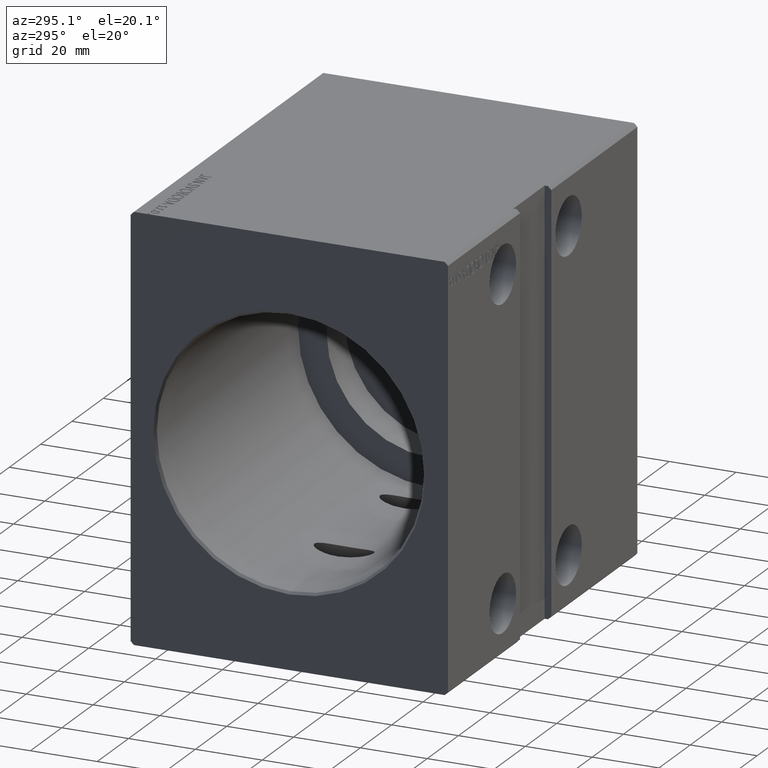
[diagram: clean part render]
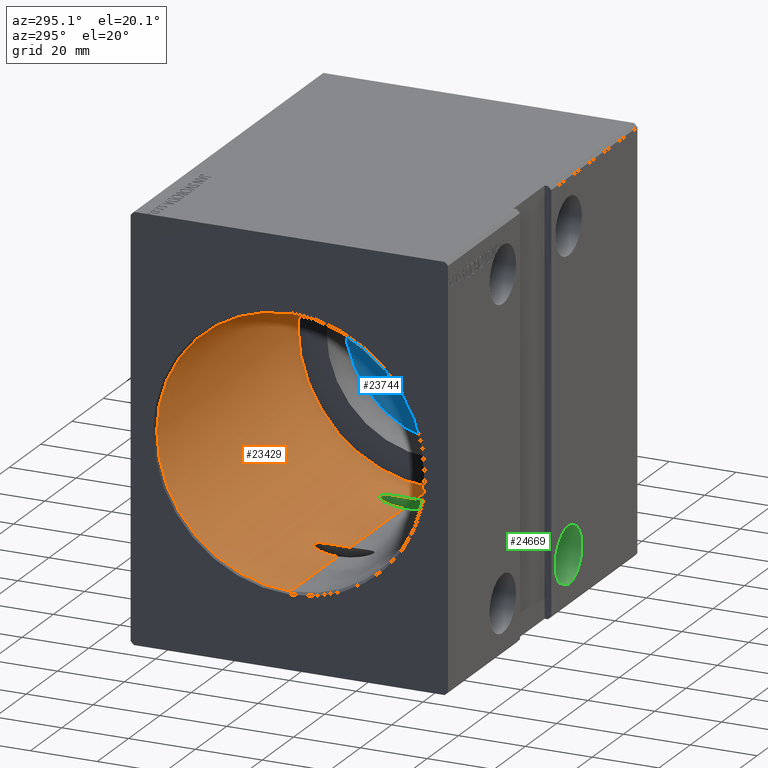
[diagram: same view with three faces highlighted in distinct colors, each labeled with its STEP entity id]
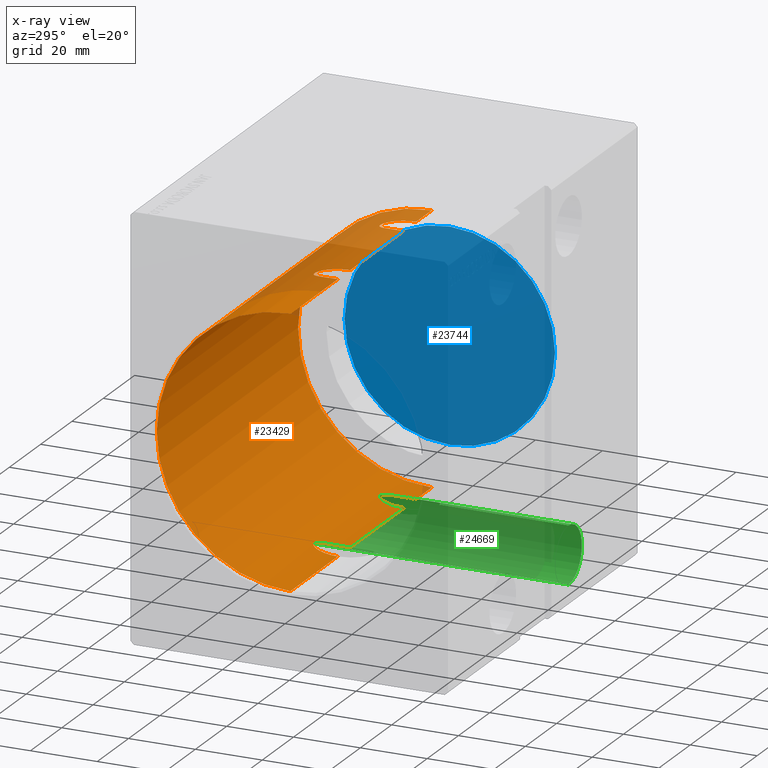
[diagram: x-ray of the same camera — body ghosted, the three highlighted faces saturated]
A machine part, auxiliary view with three faces highlighted in distinct colors.
The next image is the same camera in x-ray (body ghosted, the three faces saturated) — at least one of them is partly hidden behind the body in this view.
Their STEP definitions:

[orange] entity #23429 — the highlighted cylindrical surface (partial cylindrical patch) has radius 40 mm, axis along (-1, -0, -0).
#403 = B_SPLINE_CURVE_WITH_KNOTS ( 'NONE', 3,
 ( #18184, #15020, #1898, #17551, #11837, #41062, #37451, #27935, #11200, #5501, #40423, #28143, #40214, #31325, #24338, #8252, #17971, #2326, #4867, #12046, #18398, #33860 ),
 .UNSPECIFIED., .F., .F.,
 ( 4, 2, 2, 2, 2, 2, 2, 2, 2, 2, 4 ),
 ( 0.03124075680283506032, 0.03156586646944088692, 0.03189097613604671699, 0.03254119546925837020, 0.03319141480247002340, 0.03384163413568167661, 0.03514207280210498302, 0.03644251146852828943, 0.03904338880137488837, 0.04034382746779818785, 0.04164426613422148038 ),
 .UNSPECIFIED. ) ;
#406 = EDGE_CURVE ( 'NONE', #27024, #13630, #36870, .T. ) ;
#489 = CARTESIAN_POINT ( 'NONE',  ( 91.00000000000000000, 0.000000000000000000, 40.00000000000000000 ) ) ;
#728 = CARTESIAN_POINT ( 'NONE',  ( 73.00000000000000000, 5.476627126394349254E-15, -40.00000000000000000 ) ) ;
#784 = CARTESIAN_POINT ( 'NONE',  ( 73.10980483652021178, 2.193571123626156805, 39.94219404680328722 ) ) ;
#897 = CARTESIAN_POINT ( 'NONE',  ( 32.35749870789384630, 6.805507322899450706, 39.41886368329796397 ) ) ;
#977 = CARTESIAN_POINT ( 'NONE',  ( 74.37097286816663200, 6.812983839052382251, 39.41599220215405808 ) ) ;
#1185 = CARTESIAN_POINT ( 'NONE',  ( 74.96368527018283601, 7.729691225309620606, 39.24645151411821331 ) ) ;
#1314 = CARTESIAN_POINT ( 'NONE',  ( 32.95733738069870356, 7.721720542795547537, -39.24802279663229143 ) ) ;
#1594 = CARTESIAN_POINT ( 'NONE',  ( 39.00000000000003553, 0.8842772873619435536, 40.00000000000000000 ) ) ;
#1598 = CARTESIAN_POINT ( 'NONE',  ( 74.70681071213223845, 7.377903018384873945, 39.31410217644515370 ) ) ;
#1818 = CARTESIAN_POINT ( 'NONE',  ( 35.44814496955356731, 8.848081900637779995, 39.00919150776432787 ) ) ;
#1898 = CARTESIAN_POINT ( 'NONE',  ( 77.22073123561260388, 8.878721509888563901, -39.00216240224276731 ) ) ;
#1994 = CARTESIAN_POINT ( 'NONE',  ( 72.99999999999921840, 0.4371452684178859238, -40.00000000000000000 ) ) ;
#2177 = CARTESIAN_POINT ( 'NONE',  ( 36.06971018587699973, 8.596468886650177055, -39.06555117366415431 ) ) ;
#2255 = CARTESIAN_POINT ( 'NONE',  ( 91.00000000000000000, 0.000000000000000000, 40.00000000000000000 ) ) ;
#2326 = CARTESIAN_POINT ( 'NONE',  ( 80.88971534772775840, 2.198302733259653419, -39.94194461723602529 ) ) ;
#2410 = CARTESIAN_POINT ( 'NONE',  ( 77.00000000000001421, 8.888194417315609996, -38.99999999999999289 ) ) ;
#2432 = EDGE_CURVE ( 'NONE', #13376, #13115, #403, .T. ) ;
#2544 = EDGE_CURVE ( 'NONE', #15279, #28685, #36990, .T. ) ;
#2585 = B_SPLINE_CURVE_WITH_KNOTS ( 'NONE', 3,
 ( #25065, #1994, #5594, #30996, #40943, #14892, #34588, #28447, #37330, #21881, #37973, #27821, #11926, #21245, #24853, #5798, #21463, #15107, #31625, #2630, #31415, #28236, #14681, #2410 ),
 .UNSPECIFIED., .F., .F.,
 ( 4, 2, 2, 2, 2, 2, 2, 2, 2, 2, 2, 4 ),
 ( 0.02085609626494422039, 0.02215417883218056411, 0.02345226139941690782, 0.02604842653388959178, 0.02734650910112593550, 0.02799555038474411950, 0.02864459166836230003, 0.02929363295198048056, 0.02994267423559866109, 0.03059171551921684162, 0.03091623616102594924, 0.03124075680283506032 ),
 .UNSPECIFIED. ) ;
#2630 = CARTESIAN_POINT ( 'NONE',  ( 76.45171186835200672, 8.813097078647221139, -39.01705603477455497 ) ) ;
#2712 = VECTOR ( 'NONE', #33181, 1000.000000000000000 ) ;
#4093 = CARTESIAN_POINT ( 'NONE',  ( 34.99999999999999289, 8.888194417315633089, 38.99999999999998579 ) ) ;
#4577 = CARTESIAN_POINT ( 'NONE',  ( 76.45171186835193566, 8.813097078647166072, 39.01705603477456208 ) ) ;
#4662 = CARTESIAN_POINT ( 'NONE',  ( 80.93123102730362461, 1.760347307088199642, 39.96366178458815455 ) ) ;
#4734 = CARTESIAN_POINT ( 'NONE',  ( 91.00000000000000000, 0.000000000000000000, 40.00000000000000000 ) ) ;
#4867 = CARTESIAN_POINT ( 'NONE',  ( 80.93123102730365304, 1.760347307088206525, -39.96366178458815455 ) ) ;
#4876 = CARTESIAN_POINT ( 'NONE',  ( 80.00453569807763188, 6.020847662574139392, 39.54633044189964863 ) ) ;
#5135 = CARTESIAN_POINT ( 'NONE',  ( 38.00983182122093496, 6.007179968913170853, -39.54838495781832819 ) ) ;
#5298 = CARTESIAN_POINT ( 'NONE',  ( 78.59111670934544236, 8.209697689840783852, 39.14877357463412011 ) ) ;
#5348 = CARTESIAN_POINT ( 'NONE',  ( 37.64571886948711210, 6.799238401160293321, -39.41993557979121476 ) ) ;
#5466 = DIRECTION ( 'NONE',  ( -1.000000000000000000, 0.000000000000000000, 0.000000000000000000 ) ) ;
#5501 = CARTESIAN_POINT ( 'NONE',  ( 78.89834460036773578, 7.896197384792814411, -39.21320792050732962 ) ) ;
#5594 = CARTESIAN_POINT ( 'NONE',  ( 73.01334068797261523, 0.8751396838789607946, -39.99283631293248220 ) ) ;
#5798 = CARTESIAN_POINT ( 'NONE',  ( 75.40871134463456826, 8.209480517395482124, -39.14881666078688482 ) ) ;
#5842 = LINE ( 'NONE', #2255, #21708 ) ;
#5943 = VERTEX_POINT ( 'NONE', #728 ) ;
#6155 = CARTESIAN_POINT ( 'NONE',  ( 73.00000000000000000, 5.780399415896417278E-16, 40.00000000000000000 ) ) ;
#6217 = AXIS2_PLACEMENT_3D ( 'NONE', #15607, #5466, #28110 ) ;
#6413 = CARTESIAN_POINT ( 'NONE',  ( 91.00000000000000000, 4.898587196589413026E-15, -40.00000000000000000 ) ) ;
#6489 = CARTESIAN_POINT ( 'NONE',  ( 39.00000000000137845, -1.933016362199070337E-13, -40.00000000000000000 ) ) ;
#7474 = CARTESIAN_POINT ( 'NONE',  ( 33.09640844770643753, 7.890292373783818647, -39.21440103295969948 ) ) ;
#7551 = CARTESIAN_POINT ( 'NONE',  ( 73.06814962652906331, 1.752904412375376531, 39.96398568637000182 ) ) ;
#7595 = ORIENTED_EDGE ( 'NONE', *, *, #25923, .T. ) ;
#7705 = VERTEX_POINT ( 'NONE', #15643 ) ;
#7748 = CARTESIAN_POINT ( 'NONE',  ( 75.93976231450152170, 8.601702186180739673, 39.06439139068070432 ) ) ;
#7876 = ORIENTED_EDGE ( 'NONE', *, *, #27327, .T. ) ;
#8252 = CARTESIAN_POINT ( 'NONE',  ( 80.54571038801331895, 4.366864057599704196, -39.76972919806477336 ) ) ;
#8269 = VERTEX_POINT ( 'NONE', #16381 ) ;
#8513 = CARTESIAN_POINT ( 'NONE',  ( 38.55324516737657348, 4.336586243679152908, -39.77318005738936080 ) ) ;
#8728 = CARTESIAN_POINT ( 'NONE',  ( 36.91073227392961087, 7.882168046752674684, -39.21603928047623100 ) ) ;
#8810 = VECTOR ( 'NONE', #19307, 1000.000000000000000 ) ;
#8940 = CARTESIAN_POINT ( 'NONE',  ( 35.86954469703442783, 8.702382527277757518, -39.04195325235096448 ) ) ;
#9144 = DIRECTION ( 'NONE',  ( 0.000000000000000000, 0.000000000000000000, 1.000000000000000000 ) ) ;
#9602 = CIRCLE ( 'NONE', #6217, 40.00000000000000000 ) ;
#9644 = VERTEX_POINT ( 'NONE', #19965 ) ;
#9769 = DIRECTION ( 'NONE',  ( -1.000000000000000000, -0.000000000000000000, -0.000000000000000000 ) ) ;
#10014 = CARTESIAN_POINT ( 'NONE',  ( 30.99999999999917577, 0.8750561776355655352, 40.00000000000000000 ) ) ;
#10021 = CARTESIAN_POINT ( 'NONE',  ( 30.99999999999922906, 0.8750561776355639809, -39.99999999999999289 ) ) ;
#10364 = ORIENTED_EDGE ( 'NONE', *, *, #2544, .F. ) ;
#10422 = CARTESIAN_POINT ( 'NONE',  ( 33.93509665507549045, 8.599058470145555688, 39.06497553941075296 ) ) ;
#10630 = CARTESIAN_POINT ( 'NONE',  ( 32.57256012174857318, 7.192548791585013923, 39.34966693918343594 ) ) ;
#10712 = CARTESIAN_POINT ( 'NONE',  ( 36.91073227392959666, 7.882168046752754620, 39.21603928047621679 ) ) ;
#10756 = EDGE_LOOP ( 'NONE', ( #37653, #10364, #30822, #28219, #33075, #35861, #21692, #17704, #7595, #7876, #26199, #34262, #21282, #31712, #11986, #27025 ) ) ;
#11126 = CARTESIAN_POINT ( 'NONE',  ( 38.16384749387303543, 5.591509799604510000, 39.60950613416584787 ) ) ;
#11129 = CARTESIAN_POINT ( 'NONE',  ( 76.88947585469833257, 8.888194417315585127, 39.00000000000000711 ) ) ;
#11200 = CARTESIAN_POINT ( 'NONE',  ( 78.59111670934548499, 8.209697689840799839, -39.14877357463412011 ) ) ;
#11206 = CARTESIAN_POINT ( 'NONE',  ( 77.00000000000000000, 8.888194417315583351, 39.00000000000000000 ) ) ;
#11334 = CARTESIAN_POINT ( 'NONE',  ( 38.00983182122093496, 6.007179968913225920, 39.54838495781831398 ) ) ;
#11339 = CARTESIAN_POINT ( 'NONE',  ( 74.58846641846848513, 7.192721627606870172, 39.34846814882652666 ) ) ;
#11837 = CARTESIAN_POINT ( 'NONE',  ( 77.54851048221541987, 8.813063603515839617, -39.01706381279741009 ) ) ;
#11926 = CARTESIAN_POINT ( 'NONE',  ( 74.70681071213223845, 7.377903018384911249, -39.31410217644513239 ) ) ;
#11986 = ORIENTED_EDGE ( 'NONE', *, *, #29402, .T. ) ;
#12046 = CARTESIAN_POINT ( 'NONE',  ( 80.98638329437710581, 0.8819960549049445930, -39.99268894227613913 ) ) ;
#12104 = CARTESIAN_POINT ( 'NONE',  ( 37.43569995406782880, 7.179022913423050767, -39.35214896718183297 ) ) ;
#12236 = VERTEX_POINT ( 'NONE', #37171 ) ;
#12316 = CARTESIAN_POINT ( 'NONE',  ( 91.00000000000000000, 0.000000000000000000, 0.000000000000000000 ) ) ;
#12810 = CARTESIAN_POINT ( 'NONE',  ( 81.00000000000137845, 1.974098656450864809E-13, 40.00000000000000000 ) ) ;
#13115 = VERTEX_POINT ( 'NONE', #30016 ) ;
#13148 = CYLINDRICAL_SURFACE ( 'NONE', #20305, 40.00000000000000000 ) ;
#13152 = B_SPLINE_CURVE_WITH_KNOTS ( 'NONE', 3,
 ( #17469, #1594, #37154, #30403, #40135, #11126, #11334, #20446, #24043, #14505, #10712, #36540, #17263, #21075, #17890, #1818, #18315, #18522 ),
 .UNSPECIFIED., .F., .F.,
 ( 4, 2, 2, 2, 2, 2, 2, 2, 4 ),
 ( 4.041264202224836000E-16, 0.002615585396976400669, 0.005231170793952397147, 0.006538963492440391483, 0.007846756190928385818, 0.008500652540172383420, 0.009154548889416382756, 0.009808445238660380358, 0.01046234158790437796 ),
 .UNSPECIFIED. ) ;
#13188 = CARTESIAN_POINT ( 'NONE',  ( 31.99184554558152982, 6.011549350863647057, 39.54773088821401927 ) ) ;
#13220 = CARTESIAN_POINT ( 'NONE',  ( 91.00000000000000000, 4.898587196589413026E-15, -40.00000000000000000 ) ) ;
#13376 = VERTEX_POINT ( 'NONE', #18962 ) ;
#13404 = CARTESIAN_POINT ( 'NONE',  ( 33.40469418568827820, 8.205957392806936923, -39.14956226300645170 ) ) ;
#13606 = CARTESIAN_POINT ( 'NONE',  ( 30.99999999999996803, -5.780399254337703889E-16, 40.00000000000000000 ) ) ;
#13615 = VECTOR ( 'NONE', #35433, 1000.000000000000000 ) ;
#13630 = VERTEX_POINT ( 'NONE', #28457 ) ;
#13695 = CARTESIAN_POINT ( 'NONE',  ( 74.27182239767300587, 6.618623539690030810, 39.44913252582588115 ) ) ;
#13809 = CARTESIAN_POINT ( 'NONE',  ( 31.84034224388068779, 5.603247014671032034, 39.60782839838529412 ) ) ;
#13892 = CARTESIAN_POINT ( 'NONE',  ( 75.57710676253645943, 8.354814138639584442, 39.11793752145968028 ) ) ;
#14133 = EDGE_CURVE ( 'NONE', #34322, #12236, #39050, .T. ) ;
#14225 = CARTESIAN_POINT ( 'NONE',  ( 31.99184554558158311, 6.011549350863598207, -39.54773088821401217 ) ) ;
#14303 = CARTESIAN_POINT ( 'NONE',  ( 76.77712757299227064, 8.878478442374140300, 39.00221780115114001 ) ) ;
#14385 = CARTESIAN_POINT ( 'NONE',  ( 77.22073123561258967, 8.878721509888510610, 39.00216240224278863 ) ) ;
#14505 = CARTESIAN_POINT ( 'NONE',  ( 37.05180541677442108, 7.710174617361084337, 39.25029562884185452 ) ) ;
#14591 = CARTESIAN_POINT ( 'NONE',  ( 80.15652418789117917, 5.611982908940325920, 39.60657601176856701 ) ) ;
#14644 = CARTESIAN_POINT ( 'NONE',  ( 38.72230825713936753, 3.484280546040485316, -39.85734299538246006 ) ) ;
#14681 = CARTESIAN_POINT ( 'NONE',  ( 76.88947585469833257, 8.888194417315611773, -38.99999999999998579 ) ) ;
#14892 = CARTESIAN_POINT ( 'NONE',  ( 73.28018952717586387, 3.500538506391972948, -39.85610001433708760 ) ) ;
#15020 = CARTESIAN_POINT ( 'NONE',  ( 77.11072475337969934, 8.888194417315611773, -39.00000000000000711 ) ) ;
#15025 = CARTESIAN_POINT ( 'NONE',  ( 77.43934574472250176, 8.841323074390393444, 39.01065718486847800 ) ) ;
#15107 = CARTESIAN_POINT ( 'NONE',  ( 75.93976231450153591, 8.601702186180771648, -39.06439139068069011 ) ) ;
#15279 = VERTEX_POINT ( 'NONE', #18005 ) ;
#15607 = CARTESIAN_POINT ( 'NONE',  ( 0.7000000000000616840, 0.000000000000000000, 0.000000000000000000 ) ) ;
#15643 = CARTESIAN_POINT ( 'NONE',  ( 39.00000000000139977, -1.975033726230713128E-13, 40.00000000000000000 ) ) ;
#16062 = DIRECTION ( 'NONE',  ( 0.000000000000000000, 0.000000000000000000, 1.000000000000000000 ) ) ;
#16158 = CARTESIAN_POINT ( 'NONE',  ( 31.27718047947739777, 3.482741801787033076, 39.85758575065943177 ) ) ;
#16381 = CARTESIAN_POINT ( 'NONE',  ( 77.00000000000000000, 8.888194417315583351, 39.00000000000000000 ) ) ;
#16445 = EDGE_CURVE ( 'NONE', #28685, #13115, #16468, .T. ) ;
#16468 = LINE ( 'NONE', #20258, #2712 ) ;
#16740 = B_SPLINE_CURVE_WITH_KNOTS ( 'NONE', 3,
 ( #40345, #33567, #40139, #7551, #784, #17266, #33997, #36334, #33165, #13695, #977, #11339, #1598, #1185, #26613, #17684, #13892, #7748, #26815, #4577, #24260, #14303, #11129, #30193 ),
 .UNSPECIFIED., .F., .F.,
 ( 4, 2, 2, 2, 2, 2, 2, 2, 2, 2, 2, 4 ),
 ( 0.02085609626494417876, 0.02215417883218052941, 0.02345226139941688007, 0.02604842653388958484, 0.02734650910112593897, 0.02799555038474411256, 0.02864459166836227921, 0.02929363295198044934, 0.02994267423559861946, 0.03059171551921678611, 0.03091623616102589026, 0.03124075680283499440 ),
 .UNSPECIFIED. ) ;
#16948 = CARTESIAN_POINT ( 'NONE',  ( 31.00000000000001776, 4.320547275526808476E-15, -40.00000000000000000 ) ) ;
#16986 = CARTESIAN_POINT ( 'NONE',  ( 34.13479476889369124, 8.704262351708251799, 39.04153279242975572 ) ) ;
#17263 = CARTESIAN_POINT ( 'NONE',  ( 36.43557347892666343, 8.344890487185367078, 39.12006350427105161 ) ) ;
#17266 = CARTESIAN_POINT ( 'NONE',  ( 73.28018952717590651, 3.500538506391954741, 39.85610001433710181 ) ) ;
#17394 = CARTESIAN_POINT ( 'NONE',  ( 34.55424423128184941, 8.848522382663713159, -39.00909019079055895 ) ) ;
#17469 = CARTESIAN_POINT ( 'NONE',  ( 39.00000000000139977, -1.975033726230713128E-13, 40.00000000000000000 ) ) ;
#17551 = CARTESIAN_POINT ( 'NONE',  ( 77.43934574472250176, 8.841323074390446735, -39.01065718486845668 ) ) ;
#17684 = CARTESIAN_POINT ( 'NONE',  ( 75.40871134463458247, 8.209480517395437715, 39.14881666078688482 ) ) ;
#17704 = ORIENTED_EDGE ( 'NONE', *, *, #406, .T. ) ;
#17890 = CARTESIAN_POINT ( 'NONE',  ( 35.86954469703439941, 8.702382527277837454, 39.04195325235094316 ) ) ;
#17971 = CARTESIAN_POINT ( 'NONE',  ( 80.71853671562247712, 3.508186181228631462, -39.85547049742937276 ) ) ;
#17976 = CARTESIAN_POINT ( 'NONE',  ( 79.03930862434320659, 7.725932859796179386, 39.24719242089387450 ) ) ;
#18005 = CARTESIAN_POINT ( 'NONE',  ( 91.00000000000000000, 0.000000000000000000, 40.00000000000000000 ) ) ;
#18184 = CARTESIAN_POINT ( 'NONE',  ( 77.00000000000001421, 8.888194417315609996, -38.99999999999999289 ) ) ;
#18241 = CARTESIAN_POINT ( 'NONE',  ( 35.22259166980755651, 8.888194417315562035, -39.00000000000000711 ) ) ;
#18315 = CARTESIAN_POINT ( 'NONE',  ( 35.22259166980754230, 8.888194417315640194, 38.99999999999998579 ) ) ;
#18398 = CARTESIAN_POINT ( 'NONE',  ( 81.00000000000002842, 0.4396523920247054629, -40.00000000000000000 ) ) ;
#18522 = CARTESIAN_POINT ( 'NONE',  ( 34.99999999999999289, 8.888194417315633089, 38.99999999999998579 ) ) ;
#18962 = CARTESIAN_POINT ( 'NONE',  ( 77.00000000000001421, 8.888194417315609996, -38.99999999999999289 ) ) ;
#19307 = DIRECTION ( 'NONE',  ( -1.000000000000000000, -0.000000000000000000, -0.000000000000000000 ) ) ;
#19532 = CARTESIAN_POINT ( 'NONE',  ( 31.05225755694946344, 1.746770409802232527, 39.97130752758188521 ) ) ;
#19945 = CARTESIAN_POINT ( 'NONE',  ( 33.57214693437431663, 8.350890721141160711, -39.11877739182682490 ) ) ;
#19965 = CARTESIAN_POINT ( 'NONE',  ( 35.00000000000000711, 8.888194417315572693, -39.00000000000000711 ) ) ;
#20223 = VECTOR ( 'NONE', #39668, 1000.000000000000000 ) ;
#20258 = CARTESIAN_POINT ( 'NONE',  ( 91.00000000000000000, 4.898587196589413026E-15, -40.00000000000000000 ) ) ;
#20305 = AXIS2_PLACEMENT_3D ( 'NONE', #12316, #9769, #9144 ) ;
#20372 = CARTESIAN_POINT ( 'NONE',  ( 33.93509665507554018, 8.599058470145475752, -39.06497553941076717 ) ) ;
#20446 = CARTESIAN_POINT ( 'NONE',  ( 37.64571886948710500, 6.799238401160353718, 39.41993557979120055 ) ) ;
#20539 = VERTEX_POINT ( 'NONE', #32339 ) ;
#20647 = EDGE_CURVE ( 'NONE', #7705, #27024, #13152, .T. ) ;
#20860 = EDGE_CURVE ( 'NONE', #15279, #40658, #23996, .T. ) ;
#20997 = CARTESIAN_POINT ( 'NONE',  ( 36.43557347892666343, 8.344890487185285366, -39.12006350427107293 ) ) ;
#21069 = EDGE_CURVE ( 'NONE', #5943, #33694, #35414, .T. ) ;
#21075 = CARTESIAN_POINT ( 'NONE',  ( 36.06971018587698552, 8.596468886650258767, 39.06555117366413299 ) ) ;
#21245 = CARTESIAN_POINT ( 'NONE',  ( 74.96368527018283601, 7.729691225309658797, -39.24645151411822042 ) ) ;
#21282 = ORIENTED_EDGE ( 'NONE', *, *, #23373, .F. ) ;
#21463 = CARTESIAN_POINT ( 'NONE',  ( 75.57710676253644522, 8.354814138639619969, -39.11793752145966607 ) ) ;
#21585 = CARTESIAN_POINT ( 'NONE',  ( 79.42428242203958177, 7.197676588651832574, 39.34872371033357297 ) ) ;
#21692 = ORIENTED_EDGE ( 'NONE', *, *, #20647, .T. ) ;
#21708 = VECTOR ( 'NONE', #38430, 1000.000000000000000 ) ;
#21881 = CARTESIAN_POINT ( 'NONE',  ( 74.27182239767303429, 6.618623539690069890, -39.44913252582585983 ) ) ;
#22377 = EDGE_CURVE ( 'NONE', #9644, #34322, #25680, .T. ) ;
#22522 = LINE ( 'NONE', #489, #13615 ) ;
#23150 = CARTESIAN_POINT ( 'NONE',  ( 31.84034224388072332, 5.603247014670987625, -39.60782839838529412 ) ) ;
#23373 = EDGE_CURVE ( 'NONE', #33694, #9644, #26131, .T. ) ;
#23429 = ADVANCED_FACE ( 'NONE', ( #29034 ), #13148, .F. ) ;
#23689 = EDGE_CURVE ( 'NONE', #8269, #40658, #38715, .T. ) ;
#23996 = LINE ( 'NONE', #4734, #30542 ) ;
#24043 = CARTESIAN_POINT ( 'NONE',  ( 37.43569995406782880, 7.179022913423121821, 39.35214896718182587 ) ) ;
#24260 = CARTESIAN_POINT ( 'NONE',  ( 76.55843943076691005, 8.840818478083509291, 39.01077160859176018 ) ) ;
#24338 = CARTESIAN_POINT ( 'NONE',  ( 80.15652418789123601, 5.611982908940339243, -39.60657601176857412 ) ) ;
#24345 = CARTESIAN_POINT ( 'NONE',  ( 81.00000000000000000, 0.4396523920247002448, 40.00000000000000000 ) ) ;
#24560 = EDGE_CURVE ( 'NONE', #29045, #7705, #5842, .T. ) ;
#24842 = CARTESIAN_POINT ( 'NONE',  ( 91.00000000000000000, 4.898587196589413026E-15, -40.00000000000000000 ) ) ;
#24853 = CARTESIAN_POINT ( 'NONE',  ( 75.10255778544194527, 7.897159810391429779, -39.21301165728715432 ) ) ;
#25028 = CARTESIAN_POINT ( 'NONE',  ( 37.05180541677442818, 7.710174617361007066, -39.25029562884185452 ) ) ;
#25065 = CARTESIAN_POINT ( 'NONE',  ( 73.00000000000000000, 5.476627126394349254E-15, -40.00000000000000000 ) ) ;
#25440 = AXIS2_PLACEMENT_3D ( 'NONE', #35332, #38713, #16062 ) ;
#25680 = B_SPLINE_CURVE_WITH_KNOTS ( 'NONE', 3,
 ( #26536, #33090, #17394, #30324, #20372, #19945, #13404, #7474, #1314, #36254, #26737, #14225, #23150, #39850, #33292, #27155, #10021, #26330 ),
 .UNSPECIFIED., .F., .F.,
 ( 4, 2, 2, 2, 2, 2, 2, 2, 4 ),
 ( 0.01046234158790427041, 0.01111195125521926078, 0.01176156092253424941, 0.01241117058984923804, 0.01306078025716422841, 0.01435999959179420742, 0.01565921892642418642, 0.01825765759568414096, 0.02085609626494409549 ),
 .UNSPECIFIED. ) ;
#25907 = CARTESIAN_POINT ( 'NONE',  ( 33.40469418568824977, 8.205957392807009754, 39.14956226300643038 ) ) ;
#25923 = EDGE_CURVE ( 'NONE', #13630, #20539, #22522, .T. ) ;
#26131 = B_SPLINE_CURVE_WITH_KNOTS ( 'NONE', 3,
 ( #37507, #37936, #34342, #14644, #8513, #41124, #5135, #5348, #12104, #25028, #8728, #37297, #20997, #2177, #8940, #27788, #18241, #30546 ),
 .UNSPECIFIED., .F., .F.,
 ( 4, 2, 2, 2, 2, 2, 2, 2, 4 ),
 ( 4.011897444213468737E-16, 0.002615585396976363806, 0.005231170793952326890, 0.006538963492440313420, 0.007846756190928299082, 0.008500652540172291480, 0.009154548889416283877, 0.009808445238660278009, 0.01046234158790427041 ),
 .UNSPECIFIED. ) ;
#26199 = ORIENTED_EDGE ( 'NONE', *, *, #14133, .F. ) ;
#26330 = CARTESIAN_POINT ( 'NONE',  ( 31.00000000000001776, 4.320547275526808476E-15, -40.00000000000000000 ) ) ;
#26536 = CARTESIAN_POINT ( 'NONE',  ( 35.00000000000000711, 8.888194417315572693, -39.00000000000000711 ) ) ;
#26613 = CARTESIAN_POINT ( 'NONE',  ( 75.10255778544193106, 7.897159810391387147, 39.21301165728716853 ) ) ;
#26737 = CARTESIAN_POINT ( 'NONE',  ( 32.35749870789388183, 6.805507322899399192, -39.41886368329797818 ) ) ;
#26815 = CARTESIAN_POINT ( 'NONE',  ( 76.13859483857214627, 8.705886128782170275, 39.04116947103749169 ) ) ;
#27024 = VERTEX_POINT ( 'NONE', #40015 ) ;
#27025 = ORIENTED_EDGE ( 'NONE', *, *, #2432, .T. ) ;
#27155 = CARTESIAN_POINT ( 'NONE',  ( 31.05225755694951317, 1.746770409802224311, -39.97130752758187811 ) ) ;
#27311 = CARTESIAN_POINT ( 'NONE',  ( 77.54851048221539145, 8.813063603515809419, 39.01706381279743141 ) ) ;
#27327 = EDGE_CURVE ( 'NONE', #20539, #12236, #9602, .T. ) ;
#27522 = CARTESIAN_POINT ( 'NONE',  ( 80.98638329437709160, 0.8819960549049381537, 39.99268894227613202 ) ) ;
#27737 = CARTESIAN_POINT ( 'NONE',  ( 78.06190118001923395, 8.600817236880976324, 39.06458831139044463 ) ) ;
#27788 = CARTESIAN_POINT ( 'NONE',  ( 35.44814496955359573, 8.848081900637698283, -39.00919150776435629 ) ) ;
#27821 = CARTESIAN_POINT ( 'NONE',  ( 74.58846641846849934, 7.192721627606916357, -39.34846814882651955 ) ) ;
#27935 = CARTESIAN_POINT ( 'NONE',  ( 78.42566298075200848, 8.352678000873540398, -39.11839576585898470 ) ) ;
#27942 = CARTESIAN_POINT ( 'NONE',  ( 80.54571038801326210, 4.366864057599693538, 39.76972919806478046 ) ) ;
#28110 = DIRECTION ( 'NONE',  ( 0.000000000000000000, 0.000000000000000000, -1.000000000000000000 ) ) ;
#28143 = CARTESIAN_POINT ( 'NONE',  ( 79.42428242203959599, 7.197676588651847673, -39.34872371033357297 ) ) ;
#28151 = CARTESIAN_POINT ( 'NONE',  ( 80.71853671562243449, 3.508186181228627465, 39.85547049742937276 ) ) ;
#28219 = ORIENTED_EDGE ( 'NONE', *, *, #23689, .F. ) ;
#28236 = CARTESIAN_POINT ( 'NONE',  ( 76.77712757299232749, 8.878478442374152735, -39.00221780115114711 ) ) ;
#28353 = EDGE_CURVE ( 'NONE', #29045, #8269, #16740, .T. ) ;
#28447 = CARTESIAN_POINT ( 'NONE',  ( 73.84355187867357984, 5.612572045631595508, -39.60652766093454602 ) ) ;
#28457 = CARTESIAN_POINT ( 'NONE',  ( 30.99999999999996803, -5.780399254337703889E-16, 40.00000000000000000 ) ) ;
#28685 = VERTEX_POINT ( 'NONE', #24842 ) ;
#29034 = FACE_OUTER_BOUND ( 'NONE', #10756, .T. ) ;
#29045 = VERTEX_POINT ( 'NONE', #6155 ) ;
#29402 = EDGE_CURVE ( 'NONE', #5943, #13376, #2585, .T. ) ;
#29909 = CARTESIAN_POINT ( 'NONE',  ( 33.57214693437428110, 8.350890721141237094, 39.11877739182680358 ) ) ;
#30016 = CARTESIAN_POINT ( 'NONE',  ( 81.00000000000140687, 1.997970507834764869E-13, -40.00000000000000000 ) ) ;
#30193 = CARTESIAN_POINT ( 'NONE',  ( 77.00000000000000000, 8.888194417315583351, 39.00000000000000000 ) ) ;
#30324 = CARTESIAN_POINT ( 'NONE',  ( 34.13479476889374098, 8.704262351708150547, -39.04153279242975572 ) ) ;
#30403 = CARTESIAN_POINT ( 'NONE',  ( 38.72230825713939595, 3.484280546040521287, 39.85734299538246006 ) ) ;
#30542 = VECTOR ( 'NONE', #37101, 1000.000000000000000 ) ;
#30546 = CARTESIAN_POINT ( 'NONE',  ( 35.00000000000000711, 8.888194417315572693, -39.00000000000000711 ) ) ;
#30822 = ORIENTED_EDGE ( 'NONE', *, *, #20860, .T. ) ;
#30996 = CARTESIAN_POINT ( 'NONE',  ( 73.06814962652907752, 1.752904412375390075, -39.96398568637000182 ) ) ;
#31118 = CARTESIAN_POINT ( 'NONE',  ( 78.89834460036772157, 7.896197384792803753, 39.21320792050734383 ) ) ;
#31325 = CARTESIAN_POINT ( 'NONE',  ( 80.00453569807767451, 6.020847662574150938, -39.54633044189965574 ) ) ;
#31330 = CARTESIAN_POINT ( 'NONE',  ( 77.11072475337967091, 8.888194417315588680, 39.00000000000001421 ) ) ;
#31415 = CARTESIAN_POINT ( 'NONE',  ( 76.55843943076695268, 8.840818478083530607, -39.01077160859177440 ) ) ;
#31625 = CARTESIAN_POINT ( 'NONE',  ( 76.13859483857218891, 8.705886128782225342, -39.04116947103747748 ) ) ;
#31712 = ORIENTED_EDGE ( 'NONE', *, *, #21069, .F. ) ;
#32339 = CARTESIAN_POINT ( 'NONE',  ( 0.7000000000000616840, 0.000000000000000000, 40.00000000000000000 ) ) ;
#32460 = CARTESIAN_POINT ( 'NONE',  ( 31.45100102384053997, 4.353716322937207117, 39.77123262300046491 ) ) ;
#33075 = ORIENTED_EDGE ( 'NONE', *, *, #28353, .F. ) ;
#33084 = CARTESIAN_POINT ( 'NONE',  ( 34.55424423128182809, 8.848522382663812635, 39.00909019079053053 ) ) ;
#33090 = CARTESIAN_POINT ( 'NONE',  ( 34.77886755181009448, 8.888194417315562035, -39.00000000000000711 ) ) ;
#33165 = CARTESIAN_POINT ( 'NONE',  ( 73.99713873928055818, 6.024669445494610365, 39.54572412377565627 ) ) ;
#33181 = DIRECTION ( 'NONE',  ( -1.000000000000000000, -0.000000000000000000, -0.000000000000000000 ) ) ;
#33292 = CARTESIAN_POINT ( 'NONE',  ( 31.27718047947745816, 3.482741801787012204, -39.85758575065943177 ) ) ;
#33567 = CARTESIAN_POINT ( 'NONE',  ( 72.99999999999918998, 0.4371452684178796511, 39.99999999999998579 ) ) ;
#33654 = CARTESIAN_POINT ( 'NONE',  ( 80.88971534772772998, 2.198302733259651198, 39.94194461723601819 ) ) ;
#33694 = VERTEX_POINT ( 'NONE', #6489 ) ;
#33860 = CARTESIAN_POINT ( 'NONE',  ( 81.00000000000140687, 1.997970507834764869E-13, -40.00000000000000000 ) ) ;
#33867 = CARTESIAN_POINT ( 'NONE',  ( 81.00000000000137845, 1.974098656450864809E-13, 40.00000000000000000 ) ) ;
#33997 = CARTESIAN_POINT ( 'NONE',  ( 73.45160911352974153, 4.357593458878281645, 39.77088599141658420 ) ) ;
#34262 = ORIENTED_EDGE ( 'NONE', *, *, #22377, .F. ) ;
#34289 = CARTESIAN_POINT ( 'NONE',  ( 78.42566298075198006, 8.352678000873515529, 39.11839576585899181 ) ) ;
#34322 = VERTEX_POINT ( 'NONE', #16948 ) ;
#34342 = CARTESIAN_POINT ( 'NONE',  ( 38.94656372586337056, 1.758256962777156929, -39.97069594125083114 ) ) ;
#34588 = CARTESIAN_POINT ( 'NONE',  ( 73.45160911352975575, 4.357593458878309178, -39.77088599141657710 ) ) ;
#35332 = CARTESIAN_POINT ( 'NONE',  ( 91.00000000000000000, 0.000000000000000000, 0.000000000000000000 ) ) ;
#35414 = LINE ( 'NONE', #6413, #8810 ) ;
#35433 = DIRECTION ( 'NONE',  ( -1.000000000000000000, -0.000000000000000000, -0.000000000000000000 ) ) ;
#35842 = CARTESIAN_POINT ( 'NONE',  ( 34.77886755181008738, 8.888194417315640194, 38.99999999999998579 ) ) ;
#35861 = ORIENTED_EDGE ( 'NONE', *, *, #24560, .T. ) ;
#36254 = CARTESIAN_POINT ( 'NONE',  ( 32.57256012174860160, 7.192548791584959744, -39.34966693918345015 ) ) ;
#36334 = CARTESIAN_POINT ( 'NONE',  ( 73.84355187867355141, 5.612572045631567086, 39.60652766093457444 ) ) ;
#36540 = CARTESIAN_POINT ( 'NONE',  ( 36.60192945023006672, 8.199952475798266249, 39.15082488734756794 ) ) ;
#36870 = B_SPLINE_CURVE_WITH_KNOTS ( 'NONE', 3,
 ( #4093, #35842, #33084, #16986, #10422, #29909, #25907, #39218, #38809, #10630, #897, #13188, #13809, #32460, #16158, #19532, #10014, #13606 ),
 .UNSPECIFIED., .F., .F.,
 ( 4, 2, 2, 2, 2, 2, 2, 2, 4 ),
 ( 0.01046234158790437796, 0.01111195125521938047, 0.01176156092253438125, 0.01241117058984938376, 0.01306078025716438454, 0.01435999959179438609, 0.01565921892642438765, 0.01825765759568439422, 0.02085609626494440080 ),
 .UNSPECIFIED. ) ;
#36990 = CIRCLE ( 'NONE', #25440, 40.00000000000000000 ) ;
#37031 = CARTESIAN_POINT ( 'NONE',  ( 79.63629655112555383, 6.817500190868253540, 39.41680541524587511 ) ) ;
#37101 = DIRECTION ( 'NONE',  ( -1.000000000000000000, -0.000000000000000000, -0.000000000000000000 ) ) ;
#37154 = CARTESIAN_POINT ( 'NONE',  ( 38.94656372586340609, 1.758256962777178023, 39.97069594125082403 ) ) ;
#37171 = CARTESIAN_POINT ( 'NONE',  ( 0.7000000000000616840, 4.898587196589413026E-15, -40.00000000000000000 ) ) ;
#37297 = CARTESIAN_POINT ( 'NONE',  ( 36.60192945023008804, 8.199952475798188090, -39.15082488734758215 ) ) ;
#37330 = CARTESIAN_POINT ( 'NONE',  ( 73.99713873928057239, 6.024669445494645004, -39.54572412377564916 ) ) ;
#37451 = CARTESIAN_POINT ( 'NONE',  ( 78.06190118001926237, 8.600817236881001193, -39.06458831139043042 ) ) ;
#37507 = CARTESIAN_POINT ( 'NONE',  ( 39.00000000000137845, -1.933016362199070337E-13, -40.00000000000000000 ) ) ;
#37653 = ORIENTED_EDGE ( 'NONE', *, *, #16445, .F. ) ;
#37936 = CARTESIAN_POINT ( 'NONE',  ( 39.00000000000001421, 0.8842772873619367813, -40.00000000000000711 ) ) ;
#37973 = CARTESIAN_POINT ( 'NONE',  ( 74.37097286816660358, 6.812983839052423995, -39.41599220215406518 ) ) ;
#38430 = DIRECTION ( 'NONE',  ( -1.000000000000000000, -0.000000000000000000, -0.000000000000000000 ) ) ;
#38713 = DIRECTION ( 'NONE',  ( -1.000000000000000000, 0.000000000000000000, 0.000000000000000000 ) ) ;
#38715 = B_SPLINE_CURVE_WITH_KNOTS ( 'NONE', 3,
 ( #11206, #31330, #14385, #15025, #27311, #40861, #27737, #34289, #5298, #31118, #17976, #21585, #37031, #4876, #14591, #27942, #28151, #33654, #4662, #27522, #24345, #33867 ),
 .UNSPECIFIED., .F., .F.,
 ( 4, 2, 2, 2, 2, 2, 2, 2, 2, 2, 4 ),
 ( 0.03124075680283499440, 0.03156586646944081753, 0.03189097613604664067, 0.03254119546925828693, 0.03319141480246993320, 0.03384163413568157946, 0.03514207280210486506, 0.03644251146852815759, 0.03904338880137473572, 0.04034382746779803519, 0.04164426613422132772 ),
 .UNSPECIFIED. ) ;
#38809 = CARTESIAN_POINT ( 'NONE',  ( 32.95733738069867513, 7.721720542795610598, 39.24802279663229143 ) ) ;
#39050 = LINE ( 'NONE', #13220, #20223 ) ;
#39218 = CARTESIAN_POINT ( 'NONE',  ( 33.09640844770640911, 7.890292373783891478, 39.21440103295967816 ) ) ;
#39668 = DIRECTION ( 'NONE',  ( -1.000000000000000000, -0.000000000000000000, -0.000000000000000000 ) ) ;
#39850 = CARTESIAN_POINT ( 'NONE',  ( 31.45100102384058260, 4.353716322937175143, -39.77123262300046491 ) ) ;
#40015 = CARTESIAN_POINT ( 'NONE',  ( 34.99999999999999289, 8.888194417315633089, 38.99999999999998579 ) ) ;
#40135 = CARTESIAN_POINT ( 'NONE',  ( 38.55324516737658058, 4.336586243679193764, 39.77318005738936080 ) ) ;
#40139 = CARTESIAN_POINT ( 'NONE',  ( 73.01334068797261523, 0.8751396838789510246, 39.99283631293250352 ) ) ;
#40214 = CARTESIAN_POINT ( 'NONE',  ( 79.63629655112558225, 6.817500190868268639, -39.41680541524587511 ) ) ;
#40345 = CARTESIAN_POINT ( 'NONE',  ( 73.00000000000000000, 5.780399415896417278E-16, 40.00000000000000000 ) ) ;
#40423 = CARTESIAN_POINT ( 'NONE',  ( 79.03930862434323501, 7.725932859796192709, -39.24719242089387450 ) ) ;
#40658 = VERTEX_POINT ( 'NONE', #12810 ) ;
#40861 = CARTESIAN_POINT ( 'NONE',  ( 77.86322018110574561, 8.705178891867140223, 39.04132803922884420 ) ) ;
#40943 = CARTESIAN_POINT ( 'NONE',  ( 73.10980483652021178, 2.193571123626170127, -39.94219404680327301 ) ) ;
#41062 = CARTESIAN_POINT ( 'NONE',  ( 77.86322018110577403, 8.705178891867166868, -39.04132803922884420 ) ) ;
#41124 = CARTESIAN_POINT ( 'NONE',  ( 38.16384749387301412, 5.591509799604454045, -39.60950613416586208 ) ) ;

[blue] entity #23744 — the highlighted planar face has unit normal (-1, 0, 0).
#2077 = AXIS2_PLACEMENT_3D ( 'NONE', #23562, #36671, #8509 ) ;
#3166 = DIRECTION ( 'NONE',  ( -1.000000000000000000, 0.000000000000000000, 0.000000000000000000 ) ) ;
#4139 = AXIS2_PLACEMENT_3D ( 'NONE', #12262, #3166, #25186 ) ;
#6598 = CARTESIAN_POINT ( 'NONE',  ( 102.5000000000000000, 0.000000000000000000, 0.000000000000000000 ) ) ;
#8509 = DIRECTION ( 'NONE',  ( 0.000000000000000000, 0.000000000000000000, 1.000000000000000000 ) ) ;
#9147 = VERTEX_POINT ( 'NONE', #29457 ) ;
#11907 = EDGE_LOOP ( 'NONE', ( #28190, #35180 ) ) ;
#12262 = CARTESIAN_POINT ( 'NONE',  ( 102.5000000000000000, 0.000000000000000000, 0.000000000000000000 ) ) ;
#14261 = CIRCLE ( 'NONE', #18981, 31.50000000000000000 ) ;
#15572 = CIRCLE ( 'NONE', #2077, 31.50000000000000000 ) ;
#18981 = AXIS2_PLACEMENT_3D ( 'NONE', #6598, #32426, #29250 ) ;
#22416 = EDGE_CURVE ( 'NONE', #9147, #26814, #15572, .T. ) ;
#22634 = PLANE ( 'NONE',  #4139 ) ;
#23562 = CARTESIAN_POINT ( 'NONE',  ( 102.5000000000000000, 0.000000000000000000, 0.000000000000000000 ) ) ;
#23744 = ADVANCED_FACE ( 'NONE', ( #41280 ), #22634, .T. ) ;
#24428 = EDGE_CURVE ( 'NONE', #26814, #9147, #14261, .T. ) ;
#25186 = DIRECTION ( 'NONE',  ( 0.000000000000000000, 0.000000000000000000, 1.000000000000000000 ) ) ;
#26814 = VERTEX_POINT ( 'NONE', #30168 ) ;
#28190 = ORIENTED_EDGE ( 'NONE', *, *, #22416, .T. ) ;
#29250 = DIRECTION ( 'NONE',  ( 0.000000000000000000, 0.000000000000000000, 1.000000000000000000 ) ) ;
#29457 = CARTESIAN_POINT ( 'NONE',  ( 102.5000000000000000, 0.000000000000000000, 31.50000000000000000 ) ) ;
#30168 = CARTESIAN_POINT ( 'NONE',  ( 102.5000000000000000, 3.857637417314161900E-15, -31.50000000000000000 ) ) ;
#32426 = DIRECTION ( 'NONE',  ( -1.000000000000000000, 0.000000000000000000, 0.000000000000000000 ) ) ;
#35180 = ORIENTED_EDGE ( 'NONE', *, *, #24428, .T. ) ;
#36671 = DIRECTION ( 'NONE',  ( -1.000000000000000000, 0.000000000000000000, 0.000000000000000000 ) ) ;
#41280 = FACE_OUTER_BOUND ( 'NONE', #11907, .T. ) ;

[green] entity #24669 — the highlighted cylindrical surface (edge-blend (fillet) strip) has radius 8.5 mm, axis along (-0, -1, -0).
#290 = CARTESIAN_POINT ( 'NONE',  ( 79.43569995406782880, -7.179022913423093399, -39.35214896718181876 ) ) ;
#403 = B_SPLINE_CURVE_WITH_KNOTS ( 'NONE', 3,
 ( #18184, #15020, #1898, #17551, #11837, #41062, #37451, #27935, #11200, #5501, #40423, #28143, #40214, #31325, #24338, #8252, #17971, #2326, #4867, #12046, #18398, #33860 ),
 .UNSPECIFIED., .F., .F.,
 ( 4, 2, 2, 2, 2, 2, 2, 2, 2, 2, 4 ),
 ( 0.03124075680283506032, 0.03156586646944088692, 0.03189097613604671699, 0.03254119546925837020, 0.03319141480247002340, 0.03384163413568167661, 0.03514207280210498302, 0.03644251146852828943, 0.03904338880137488837, 0.04034382746779818785, 0.04164426613422148038 ),
 .UNSPECIFIED. ) ;
#516 = CARTESIAN_POINT ( 'NONE',  ( 77.00000000000001421, 47.50000000000003553, -56.00000000000000711 ) ) ;
#531 = CYLINDRICAL_SURFACE ( 'NONE', #6810, 8.500000000000007105 ) ;
#1898 = CARTESIAN_POINT ( 'NONE',  ( 77.22073123561260388, 8.878721509888563901, -39.00216240224276731 ) ) ;
#1955 = AXIS2_PLACEMENT_3D ( 'NONE', #21248, #21467, #21672 ) ;
#2326 = CARTESIAN_POINT ( 'NONE',  ( 80.88971534772775840, 2.198302733259653419, -39.94194461723602529 ) ) ;
#2432 = EDGE_CURVE ( 'NONE', #13376, #13115, #403, .T. ) ;
#2452 = CARTESIAN_POINT ( 'NONE',  ( 77.00000000000001421, 47.50000000000003553, -38.99999999999999289 ) ) ;
#3691 = CARTESIAN_POINT ( 'NONE',  ( 80.00983182122091364, -6.007179968913204604, -39.54838495781831398 ) ) ;
#4549 = AXIS2_PLACEMENT_3D ( 'NONE', #33689, #4910, #39625 ) ;
#4867 = CARTESIAN_POINT ( 'NONE',  ( 80.93123102730365304, 1.760347307088206525, -39.96366178458815455 ) ) ;
#4910 = DIRECTION ( 'NONE',  ( -0.000000000000000000, 1.000000000000000000, 1.692413147294446216E-16 ) ) ;
#5501 = CARTESIAN_POINT ( 'NONE',  ( 78.89834460036773578, 7.896197384792814411, -39.21320792050732962 ) ) ;
#6021 = CARTESIAN_POINT ( 'NONE',  ( 78.43557347892667053, -8.344890487185304906, -39.12006350427106582 ) ) ;
#6249 = DIRECTION ( 'NONE',  ( -0.000000000000000000, -1.000000000000000000, -5.507058653894625853E-17 ) ) ;
#6543 = VERTEX_POINT ( 'NONE', #10626 ) ;
#6550 = EDGE_CURVE ( 'NONE', #28260, #21225, #30231, .T. ) ;
#6810 = AXIS2_PLACEMENT_3D ( 'NONE', #19780, #29743, #36291 ) ;
#7325 = ORIENTED_EDGE ( 'NONE', *, *, #6550, .F. ) ;
#8243 = EDGE_CURVE ( 'NONE', #13115, #29081, #16215, .T. ) ;
#8252 = CARTESIAN_POINT ( 'NONE',  ( 80.54571038801331895, 4.366864057599704196, -39.76972919806477336 ) ) ;
#8893 = ORIENTED_EDGE ( 'NONE', *, *, #22459, .F. ) ;
#9404 = CARTESIAN_POINT ( 'NONE',  ( 77.86954469703442783, -8.702382527277800151, -39.04195325235095737 ) ) ;
#9436 = ORIENTED_EDGE ( 'NONE', *, *, #2432, .F. ) ;
#10626 = CARTESIAN_POINT ( 'NONE',  ( 77.00000000000001421, 47.50000000000003553, -56.00000000000000711 ) ) ;
#11200 = CARTESIAN_POINT ( 'NONE',  ( 78.59111670934548499, 8.209697689840799839, -39.14877357463412011 ) ) ;
#11740 = VECTOR ( 'NONE', #23804, 1000.000000000000000 ) ;
#11837 = CARTESIAN_POINT ( 'NONE',  ( 77.54851048221541987, 8.813063603515839617, -39.01706381279741009 ) ) ;
#12046 = CARTESIAN_POINT ( 'NONE',  ( 80.98638329437710581, 0.8819960549049445930, -39.99268894227613913 ) ) ;
#12362 = CARTESIAN_POINT ( 'NONE',  ( 81.00000000000002842, -0.8842772873619378915, -39.99999999999999289 ) ) ;
#12567 = CARTESIAN_POINT ( 'NONE',  ( 80.16384749387300701, -5.591509799604481579, -39.60950613416584787 ) ) ;
#12711 = EDGE_CURVE ( 'NONE', #6543, #14709, #40482, .T. ) ;
#12785 = CARTESIAN_POINT ( 'NONE',  ( 77.44814496955359573, -8.848081900637742692, -39.00919150776434918 ) ) ;
#12991 = CARTESIAN_POINT ( 'NONE',  ( 80.55324516737658769, -4.336586243679171560, -39.77318005738936790 ) ) ;
#13115 = VERTEX_POINT ( 'NONE', #30016 ) ;
#13376 = VERTEX_POINT ( 'NONE', #18962 ) ;
#14152 = CARTESIAN_POINT ( 'NONE',  ( 77.00000000000001421, -8.888194417315611773, -38.99999999999999289 ) ) ;
#14709 = VERTEX_POINT ( 'NONE', #2452 ) ;
#15020 = CARTESIAN_POINT ( 'NONE',  ( 77.11072475337969934, 8.888194417315611773, -39.00000000000000711 ) ) ;
#15675 = CARTESIAN_POINT ( 'NONE',  ( 77.00000000000001421, -47.50000000000000711, -56.00000000000001421 ) ) ;
#16215 = B_SPLINE_CURVE_WITH_KNOTS ( 'NONE', 3,
 ( #19544, #12362, #38402, #25706, #12991, #12567, #3691, #32474, #290, #38610, #41799, #19748, #6021, #31852, #9404, #12785, #22534, #22317 ),
 .UNSPECIFIED., .F., .F.,
 ( 4, 2, 2, 2, 2, 2, 2, 2, 4 ),
 ( 4.021753678917412803E-16, 0.002615585396976376382, 0.005231170793952351177, 0.006538963492440343778, 0.007846756190928337246, 0.008500652540172336583, 0.009154548889416335919, 0.009808445238660335255, 0.01046234158790433459 ),
 .UNSPECIFIED. ) ;
#17025 = LINE ( 'NONE', #39259, #11740 ) ;
#17551 = CARTESIAN_POINT ( 'NONE',  ( 77.43934574472250176, 8.841323074390446735, -39.01065718486845668 ) ) ;
#17971 = CARTESIAN_POINT ( 'NONE',  ( 80.71853671562247712, 3.508186181228631462, -39.85547049742937276 ) ) ;
#18184 = CARTESIAN_POINT ( 'NONE',  ( 77.00000000000001421, 8.888194417315609996, -38.99999999999999289 ) ) ;
#18398 = CARTESIAN_POINT ( 'NONE',  ( 81.00000000000002842, 0.4396523920247054629, -40.00000000000000000 ) ) ;
#18962 = CARTESIAN_POINT ( 'NONE',  ( 77.00000000000001421, 8.888194417315609996, -38.99999999999999289 ) ) ;
#19544 = CARTESIAN_POINT ( 'NONE',  ( 81.00000000000140687, 1.997970507834764869E-13, -40.00000000000000000 ) ) ;
#19748 = CARTESIAN_POINT ( 'NONE',  ( 78.60192945023011646, -8.199952475798220064, -39.15082488734757504 ) ) ;
#19780 = CARTESIAN_POINT ( 'NONE',  ( 77.00000000000001421, 47.50000000000003553, -47.50000000000000000 ) ) ;
#21225 = VERTEX_POINT ( 'NONE', #15675 ) ;
#21248 = CARTESIAN_POINT ( 'NONE',  ( 77.00000000000001421, 47.50000000000003553, -47.50000000000000000 ) ) ;
#21467 = DIRECTION ( 'NONE',  ( 0.000000000000000000, -1.000000000000000000, -5.507058653894625853E-17 ) ) ;
#21672 = DIRECTION ( 'NONE',  ( 0.000000000000000000, 0.000000000000000000, -1.000000000000000000 ) ) ;
#22317 = CARTESIAN_POINT ( 'NONE',  ( 77.00000000000001421, -8.888194417315611773, -38.99999999999999289 ) ) ;
#22459 = EDGE_CURVE ( 'NONE', #14709, #13376, #27356, .T. ) ;
#22534 = CARTESIAN_POINT ( 'NONE',  ( 77.22259166980755651, -8.888194417315617102, -39.00000000000000000 ) ) ;
#23804 = DIRECTION ( 'NONE',  ( -0.000000000000000000, -1.000000000000000000, -5.507058653894625853E-17 ) ) ;
#24338 = CARTESIAN_POINT ( 'NONE',  ( 80.15652418789123601, 5.611982908940339243, -39.60657601176857412 ) ) ;
#24669 = ADVANCED_FACE ( 'NONE', ( #32504 ), #531, .F. ) ;
#25706 = CARTESIAN_POINT ( 'NONE',  ( 80.72230825713940305, -3.484280546040502635, -39.85734299538246006 ) ) ;
#26889 = ORIENTED_EDGE ( 'NONE', *, *, #8243, .F. ) ;
#27356 = LINE ( 'NONE', #27571, #35194 ) ;
#27445 = EDGE_LOOP ( 'NONE', ( #8893, #36702, #41346, #7325, #35395, #26889, #9436 ) ) ;
#27571 = CARTESIAN_POINT ( 'NONE',  ( 77.00000000000001421, 47.50000000000003553, -38.99999999999999289 ) ) ;
#27935 = CARTESIAN_POINT ( 'NONE',  ( 78.42566298075200848, 8.352678000873540398, -39.11839576585898470 ) ) ;
#28056 = LINE ( 'NONE', #516, #37049 ) ;
#28143 = CARTESIAN_POINT ( 'NONE',  ( 79.42428242203959599, 7.197676588651847673, -39.34872371033357297 ) ) ;
#28260 = VERTEX_POINT ( 'NONE', #29160 ) ;
#29081 = VERTEX_POINT ( 'NONE', #14152 ) ;
#29160 = CARTESIAN_POINT ( 'NONE',  ( 77.00000000000001421, -47.50000000000000711, -39.00000000000000000 ) ) ;
#29743 = DIRECTION ( 'NONE',  ( -0.000000000000000000, -1.000000000000000000, -5.507058653894625853E-17 ) ) ;
#29821 = EDGE_CURVE ( 'NONE', #29081, #28260, #17025, .T. ) ;
#30016 = CARTESIAN_POINT ( 'NONE',  ( 81.00000000000140687, 1.997970507834764869E-13, -40.00000000000000000 ) ) ;
#30231 = CIRCLE ( 'NONE', #4549, 8.500000000000007105 ) ;
#30538 = DIRECTION ( 'NONE',  ( -0.000000000000000000, -1.000000000000000000, -5.507058653894625853E-17 ) ) ;
#31325 = CARTESIAN_POINT ( 'NONE',  ( 80.00453569807767451, 6.020847662574150938, -39.54633044189965574 ) ) ;
#31852 = CARTESIAN_POINT ( 'NONE',  ( 78.06971018587701394, -8.596468886650193042, -39.06555117366413299 ) ) ;
#32474 = CARTESIAN_POINT ( 'NONE',  ( 79.64571886948708368, -6.799238401160328849, -39.41993557979120766 ) ) ;
#32504 = FACE_OUTER_BOUND ( 'NONE', #27445, .T. ) ;
#33689 = CARTESIAN_POINT ( 'NONE',  ( 77.00000000000001421, -47.50000000000000711, -47.50000000000000711 ) ) ;
#33860 = CARTESIAN_POINT ( 'NONE',  ( 81.00000000000140687, 1.997970507834764869E-13, -40.00000000000000000 ) ) ;
#35194 = VECTOR ( 'NONE', #30538, 1000.000000000000000 ) ;
#35395 = ORIENTED_EDGE ( 'NONE', *, *, #29821, .F. ) ;
#36271 = EDGE_CURVE ( 'NONE', #6543, #21225, #28056, .T. ) ;
#36291 = DIRECTION ( 'NONE',  ( 0.000000000000000000, 0.000000000000000000, -1.000000000000000000 ) ) ;
#36702 = ORIENTED_EDGE ( 'NONE', *, *, #12711, .F. ) ;
#37049 = VECTOR ( 'NONE', #6249, 1000.000000000000000 ) ;
#37451 = CARTESIAN_POINT ( 'NONE',  ( 78.06190118001926237, 8.600817236881001193, -39.06458831139043042 ) ) ;
#38402 = CARTESIAN_POINT ( 'NONE',  ( 80.94656372586341320, -1.758256962777163812, -39.97069594125082403 ) ) ;
#38610 = CARTESIAN_POINT ( 'NONE',  ( 79.05180541677445660, -7.710174617361056804, -39.25029562884186163 ) ) ;
#39259 = CARTESIAN_POINT ( 'NONE',  ( 77.00000000000001421, 47.50000000000003553, -38.99999999999999289 ) ) ;
#39625 = DIRECTION ( 'NONE',  ( 0.000000000000000000, 0.000000000000000000, 1.000000000000000000 ) ) ;
#40214 = CARTESIAN_POINT ( 'NONE',  ( 79.63629655112558225, 6.817500190868268639, -39.41680541524587511 ) ) ;
#40423 = CARTESIAN_POINT ( 'NONE',  ( 79.03930862434323501, 7.725932859796192709, -39.24719242089387450 ) ) ;
#40482 = CIRCLE ( 'NONE', #1955, 8.500000000000007105 ) ;
#41062 = CARTESIAN_POINT ( 'NONE',  ( 77.86322018110577403, 8.705178891867166868, -39.04132803922884420 ) ) ;
#41346 = ORIENTED_EDGE ( 'NONE', *, *, #36271, .T. ) ;
#41799 = CARTESIAN_POINT ( 'NONE',  ( 78.91073227392961087, -7.882168046752712876, -39.21603928047622389 ) ) ;